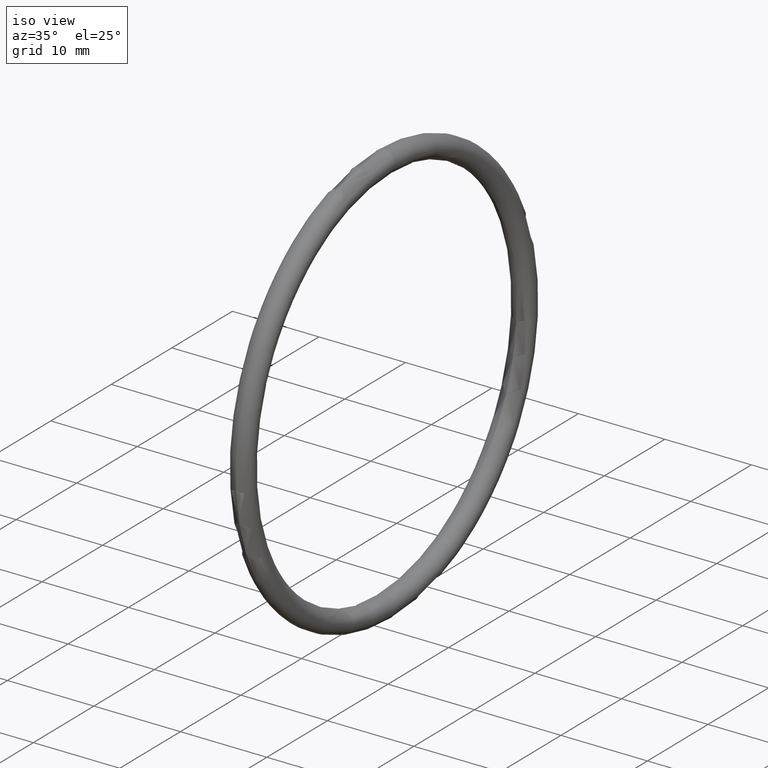
[diagram: clean part render]
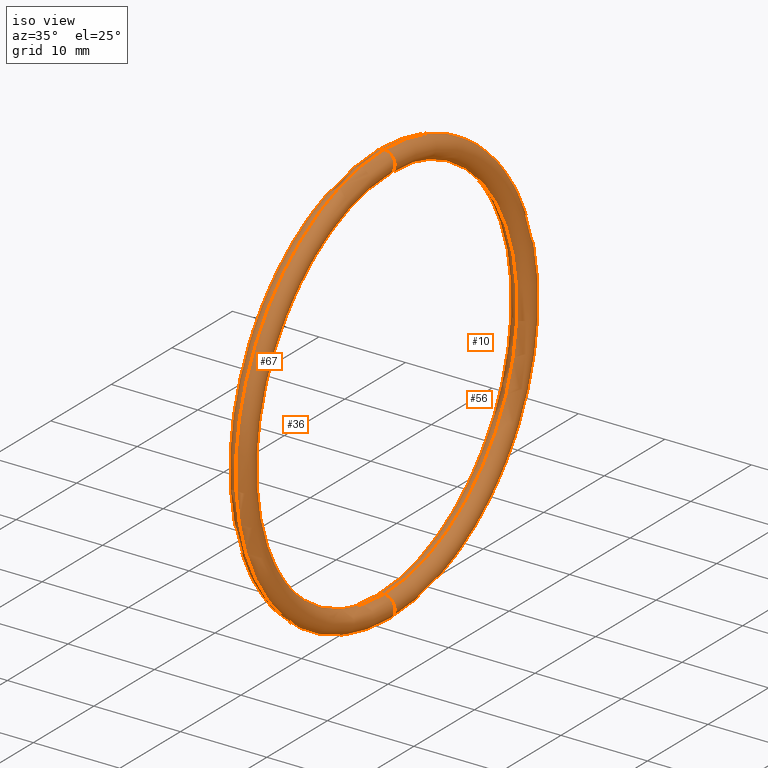
[diagram: same view with one multi-face feature highlighted, each face labeled with its STEP entity id]
A machine part, iso view. The highlighted faces form ONE feature: a constant-radius fillet chain: 4 tangent blend faces with common blend radius 1.27 mm. The faces share edges in the B-rep.
Their STEP definitions:
[1] entity #56 (Torus):
#2 = EDGE_CURVE ( 'NONE', #34, #6, #30, .T. ) ;
#5 = VERTEX_POINT ( 'NONE', #14 ) ;
#6 = VERTEX_POINT ( 'NONE', #13 ) ;
#8 = ORIENTED_EDGE ( 'NONE', *, *, #9, .F. ) ;
#9 = EDGE_CURVE ( 'NONE', #6, #54, #44, .T. ) ;
#11 = CARTESIAN_POINT ( 'NONE',  ( 0.1000000000000001300, 0.0000000000000000000, 0.0000000000000000000 ) ) ;
#13 = CARTESIAN_POINT ( 'NONE',  ( 0.1000000000000001300, 0.0000000000000000000, 0.8649999999999998800 ) ) ;
#14 = CARTESIAN_POINT ( 'NONE',  ( 0.1000000000000001300, 1.181784161177195800E-016, -0.9649999999999999700 ) ) ;
#15 = DIRECTION ( 'NONE',  ( 0.0000000000000000000, 0.0000000000000000000, -1.000000000000000000 ) ) ;
#16 = DIRECTION ( 'NONE',  ( 0.0000000000000000000, -1.000000000000000000, 0.0000000000000000000 ) ) ;
#17 = CARTESIAN_POINT ( 'NONE',  ( 0.1000000000000001300, 0.0000000000000000000, 0.9149999999999999200 ) ) ;
#22 = ORIENTED_EDGE ( 'NONE', *, *, #66, .T. ) ;
#24 = CARTESIAN_POINT ( 'NONE',  ( 0.1000000000000001300, 0.0000000000000000000, 0.9649999999999999700 ) ) ;
#29 = AXIS2_PLACEMENT_3D ( 'NONE', #17, #16, #15 ) ;
#30 = CIRCLE ( 'NONE', #29, 0.05000000000000001000 ) ;
#31 = ORIENTED_EDGE ( 'NONE', *, *, #2, .F. ) ;
#34 = VERTEX_POINT ( 'NONE', #24 ) ;
#41 = DIRECTION ( 'NONE',  ( 0.0000000000000000000, 0.0000000000000000000, 1.000000000000000000 ) ) ;
#42 = DIRECTION ( 'NONE',  ( -1.000000000000000000, 0.0000000000000000000, 0.0000000000000000000 ) ) ;
#43 = AXIS2_PLACEMENT_3D ( 'NONE', #11, #42, #41 ) ;
#44 = CIRCLE ( 'NONE', #43, 0.8649999999999998800 ) ;
#54 = VERTEX_POINT ( 'NONE', #166 ) ;
#56 = ADVANCED_FACE ( 'NONE', ( #125 ), #169, .T. ) ;
#57 = EDGE_LOOP ( 'NONE', ( #31, #64, #22, #8 ) ) ;
#64 = ORIENTED_EDGE ( 'NONE', *, *, #65, .T. ) ;
#65 = EDGE_CURVE ( 'NONE', #34, #5, #71, .T. ) ;
#66 = EDGE_CURVE ( 'NONE', #5, #54, #79, .T. ) ;
#68 = DIRECTION ( 'NONE',  ( -1.000000000000000000, 0.0000000000000000000, 0.0000000000000000000 ) ) ;
#69 = CARTESIAN_POINT ( 'NONE',  ( 0.1000000000000001300, 0.0000000000000000000, 0.0000000000000000000 ) ) ;
#70 = AXIS2_PLACEMENT_3D ( 'NONE', #69, #68, #126 ) ;
#71 = CIRCLE ( 'NONE', #70, 0.9649999999999999700 ) ;
#77 = CARTESIAN_POINT ( 'NONE',  ( 0.1000000000000001300, 1.120551821219828000E-016, -0.9149999999999999200 ) ) ;
#78 = AXIS2_PLACEMENT_3D ( 'NONE', #77, #83, #82 ) ;
#79 = CIRCLE ( 'NONE', #78, 0.05000000000000001000 ) ;
#82 = DIRECTION ( 'NONE',  ( 0.0000000000000000000, -1.224646799147354700E-016, 1.000000000000000000 ) ) ;
#83 = DIRECTION ( 'NONE',  ( 0.0000000000000000000, 1.000000000000000000, 1.224646799147353200E-016 ) ) ;
#91 = DIRECTION ( 'NONE',  ( 0.0000000000000000000, 0.0000000000000000000, 1.000000000000000000 ) ) ;
#92 = DIRECTION ( 'NONE',  ( -1.000000000000000000, 0.0000000000000000000, 0.0000000000000000000 ) ) ;
#93 = CARTESIAN_POINT ( 'NONE',  ( 0.1000000000000001300, 0.0000000000000000000, 0.0000000000000000000 ) ) ;
#94 = AXIS2_PLACEMENT_3D ( 'NONE', #93, #92, #91 ) ;
#125 = FACE_OUTER_BOUND ( 'NONE', #57, .T. ) ;
#126 = DIRECTION ( 'NONE',  ( 0.0000000000000000000, 0.0000000000000000000, 1.000000000000000000 ) ) ;
#166 = CARTESIAN_POINT ( 'NONE',  ( 0.1000000000000001300, 1.059319481262460300E-016, -0.8649999999999998800 ) ) ;
#169 = TOROIDAL_SURFACE ( 'NONE', #94, 0.9149999999999999200, 0.05000000000000002400 ) ;
[2] entity #10 (Torus):
#5 = VERTEX_POINT ( 'NONE', #14 ) ;
#6 = VERTEX_POINT ( 'NONE', #13 ) ;
#9 = EDGE_CURVE ( 'NONE', #6, #54, #44, .T. ) ;
#10 = ADVANCED_FACE ( 'NONE', ( #12 ), #39, .T. ) ;
#11 = CARTESIAN_POINT ( 'NONE',  ( 0.1000000000000001300, 0.0000000000000000000, 0.0000000000000000000 ) ) ;
#12 = FACE_OUTER_BOUND ( 'NONE', #18, .T. ) ;
#13 = CARTESIAN_POINT ( 'NONE',  ( 0.1000000000000001300, 0.0000000000000000000, 0.8649999999999998800 ) ) ;
#14 = CARTESIAN_POINT ( 'NONE',  ( 0.1000000000000001300, 1.181784161177195800E-016, -0.9649999999999999700 ) ) ;
#18 = EDGE_LOOP ( 'NONE', ( #19, #20, #62, #46 ) ) ;
#19 = ORIENTED_EDGE ( 'NONE', *, *, #65, .F. ) ;
#20 = ORIENTED_EDGE ( 'NONE', *, *, #21, .F. ) ;
#21 = EDGE_CURVE ( 'NONE', #6, #34, #52, .T. ) ;
#24 = CARTESIAN_POINT ( 'NONE',  ( 0.1000000000000001300, 0.0000000000000000000, 0.9649999999999999700 ) ) ;
#34 = VERTEX_POINT ( 'NONE', #24 ) ;
#35 = EDGE_CURVE ( 'NONE', #54, #5, #196, .T. ) ;
#37 = CARTESIAN_POINT ( 'NONE',  ( 0.1000000000000001300, 0.0000000000000000000, 0.0000000000000000000 ) ) ;
#38 = AXIS2_PLACEMENT_3D ( 'NONE', #37, #40, #53 ) ;
#39 = TOROIDAL_SURFACE ( 'NONE', #38, 0.9149999999999999200, 0.05000000000000002400 ) ;
#40 = DIRECTION ( 'NONE',  ( -1.000000000000000000, 0.0000000000000000000, 0.0000000000000000000 ) ) ;
#41 = DIRECTION ( 'NONE',  ( 0.0000000000000000000, 0.0000000000000000000, 1.000000000000000000 ) ) ;
#42 = DIRECTION ( 'NONE',  ( -1.000000000000000000, 0.0000000000000000000, 0.0000000000000000000 ) ) ;
#43 = AXIS2_PLACEMENT_3D ( 'NONE', #11, #42, #41 ) ;
#44 = CIRCLE ( 'NONE', #43, 0.8649999999999998800 ) ;
#46 = ORIENTED_EDGE ( 'NONE', *, *, #35, .T. ) ;
#48 = DIRECTION ( 'NONE',  ( 0.0000000000000000000, 0.0000000000000000000, -1.000000000000000000 ) ) ;
#49 = DIRECTION ( 'NONE',  ( 0.0000000000000000000, -1.000000000000000000, 0.0000000000000000000 ) ) ;
#50 = CARTESIAN_POINT ( 'NONE',  ( 0.1000000000000001300, 0.0000000000000000000, 0.9149999999999999200 ) ) ;
#51 = AXIS2_PLACEMENT_3D ( 'NONE', #50, #49, #48 ) ;
#52 = CIRCLE ( 'NONE', #51, 0.05000000000000001000 ) ;
#53 = DIRECTION ( 'NONE',  ( 0.0000000000000000000, 0.0000000000000000000, 1.000000000000000000 ) ) ;
#54 = VERTEX_POINT ( 'NONE', #166 ) ;
#62 = ORIENTED_EDGE ( 'NONE', *, *, #9, .T. ) ;
#65 = EDGE_CURVE ( 'NONE', #34, #5, #71, .T. ) ;
#68 = DIRECTION ( 'NONE',  ( -1.000000000000000000, 0.0000000000000000000, 0.0000000000000000000 ) ) ;
#69 = CARTESIAN_POINT ( 'NONE',  ( 0.1000000000000001300, 0.0000000000000000000, 0.0000000000000000000 ) ) ;
#70 = AXIS2_PLACEMENT_3D ( 'NONE', #69, #68, #126 ) ;
#71 = CIRCLE ( 'NONE', #70, 0.9649999999999999700 ) ;
#89 = CARTESIAN_POINT ( 'NONE',  ( 0.1000000000000001300, 1.120551821219828000E-016, -0.9149999999999999200 ) ) ;
#126 = DIRECTION ( 'NONE',  ( 0.0000000000000000000, 0.0000000000000000000, 1.000000000000000000 ) ) ;
#127 = AXIS2_PLACEMENT_3D ( 'NONE', #89, #147, #146 ) ;
#146 = DIRECTION ( 'NONE',  ( 0.0000000000000000000, -1.224646799147354700E-016, 1.000000000000000000 ) ) ;
#147 = DIRECTION ( 'NONE',  ( 0.0000000000000000000, 1.000000000000000000, 1.224646799147353200E-016 ) ) ;
#166 = CARTESIAN_POINT ( 'NONE',  ( 0.1000000000000001300, 1.059319481262460300E-016, -0.8649999999999998800 ) ) ;
#196 = CIRCLE ( 'NONE', #127, 0.05000000000000001000 ) ;
[3] entity #36 (Torus):
#3 = ORIENTED_EDGE ( 'NONE', *, *, #21, .T. ) ;
#5 = VERTEX_POINT ( 'NONE', #14 ) ;
#6 = VERTEX_POINT ( 'NONE', #13 ) ;
#13 = CARTESIAN_POINT ( 'NONE',  ( 0.1000000000000001300, 0.0000000000000000000, 0.8649999999999998800 ) ) ;
#14 = CARTESIAN_POINT ( 'NONE',  ( 0.1000000000000001300, 1.181784161177195800E-016, -0.9649999999999999700 ) ) ;
#21 = EDGE_CURVE ( 'NONE', #6, #34, #52, .T. ) ;
#24 = CARTESIAN_POINT ( 'NONE',  ( 0.1000000000000001300, 0.0000000000000000000, 0.9649999999999999700 ) ) ;
#25 = DIRECTION ( 'NONE',  ( 0.0000000000000000000, 0.0000000000000000000, 1.000000000000000000 ) ) ;
#26 = DIRECTION ( 'NONE',  ( -1.000000000000000000, 0.0000000000000000000, 0.0000000000000000000 ) ) ;
#27 = CARTESIAN_POINT ( 'NONE',  ( 0.1000000000000001300, 0.0000000000000000000, 0.0000000000000000000 ) ) ;
#28 = AXIS2_PLACEMENT_3D ( 'NONE', #27, #26, #25 ) ;
#33 = EDGE_CURVE ( 'NONE', #5, #34, #47, .T. ) ;
#34 = VERTEX_POINT ( 'NONE', #24 ) ;
#35 = EDGE_CURVE ( 'NONE', #54, #5, #196, .T. ) ;
#36 = ADVANCED_FACE ( 'NONE', ( #191 ), #193, .T. ) ;
#45 = EDGE_LOOP ( 'NONE', ( #59, #61, #60, #3 ) ) ;
#47 = CIRCLE ( 'NONE', #28, 0.9649999999999999700 ) ;
#48 = DIRECTION ( 'NONE',  ( 0.0000000000000000000, 0.0000000000000000000, -1.000000000000000000 ) ) ;
#49 = DIRECTION ( 'NONE',  ( 0.0000000000000000000, -1.000000000000000000, 0.0000000000000000000 ) ) ;
#50 = CARTESIAN_POINT ( 'NONE',  ( 0.1000000000000001300, 0.0000000000000000000, 0.9149999999999999200 ) ) ;
#51 = AXIS2_PLACEMENT_3D ( 'NONE', #50, #49, #48 ) ;
#52 = CIRCLE ( 'NONE', #51, 0.05000000000000001000 ) ;
#54 = VERTEX_POINT ( 'NONE', #166 ) ;
#55 = EDGE_CURVE ( 'NONE', #54, #6, #124, .T. ) ;
#59 = ORIENTED_EDGE ( 'NONE', *, *, #33, .F. ) ;
#60 = ORIENTED_EDGE ( 'NONE', *, *, #55, .T. ) ;
#61 = ORIENTED_EDGE ( 'NONE', *, *, #35, .F. ) ;
#89 = CARTESIAN_POINT ( 'NONE',  ( 0.1000000000000001300, 1.120551821219828000E-016, -0.9149999999999999200 ) ) ;
#90 = CARTESIAN_POINT ( 'NONE',  ( 0.1000000000000001300, 0.0000000000000000000, 0.0000000000000000000 ) ) ;
#96 = DIRECTION ( 'NONE',  ( 0.0000000000000000000, 0.0000000000000000000, 1.000000000000000000 ) ) ;
#97 = AXIS2_PLACEMENT_3D ( 'NONE', #123, #145, #96 ) ;
#123 = CARTESIAN_POINT ( 'NONE',  ( 0.1000000000000001300, 0.0000000000000000000, 0.0000000000000000000 ) ) ;
#124 = CIRCLE ( 'NONE', #97, 0.8649999999999998800 ) ;
#127 = AXIS2_PLACEMENT_3D ( 'NONE', #89, #147, #146 ) ;
#145 = DIRECTION ( 'NONE',  ( -1.000000000000000000, 0.0000000000000000000, 0.0000000000000000000 ) ) ;
#146 = DIRECTION ( 'NONE',  ( 0.0000000000000000000, -1.224646799147354700E-016, 1.000000000000000000 ) ) ;
#147 = DIRECTION ( 'NONE',  ( 0.0000000000000000000, 1.000000000000000000, 1.224646799147353200E-016 ) ) ;
#166 = CARTESIAN_POINT ( 'NONE',  ( 0.1000000000000001300, 1.059319481262460300E-016, -0.8649999999999998800 ) ) ;
#167 = DIRECTION ( 'NONE',  ( 0.0000000000000000000, 0.0000000000000000000, 1.000000000000000000 ) ) ;
#168 = DIRECTION ( 'NONE',  ( -1.000000000000000000, 0.0000000000000000000, 0.0000000000000000000 ) ) ;
#191 = FACE_OUTER_BOUND ( 'NONE', #45, .T. ) ;
#192 = AXIS2_PLACEMENT_3D ( 'NONE', #90, #168, #167 ) ;
#193 = TOROIDAL_SURFACE ( 'NONE', #192, 0.9149999999999999200, 0.05000000000000002400 ) ;
#196 = CIRCLE ( 'NONE', #127, 0.05000000000000001000 ) ;
[4] entity #67 (Torus):
#2 = EDGE_CURVE ( 'NONE', #34, #6, #30, .T. ) ;
#4 = ORIENTED_EDGE ( 'NONE', *, *, #66, .F. ) ;
#5 = VERTEX_POINT ( 'NONE', #14 ) ;
#6 = VERTEX_POINT ( 'NONE', #13 ) ;
#7 = ORIENTED_EDGE ( 'NONE', *, *, #55, .F. ) ;
#13 = CARTESIAN_POINT ( 'NONE',  ( 0.1000000000000001300, 0.0000000000000000000, 0.8649999999999998800 ) ) ;
#14 = CARTESIAN_POINT ( 'NONE',  ( 0.1000000000000001300, 1.181784161177195800E-016, -0.9649999999999999700 ) ) ;
#15 = DIRECTION ( 'NONE',  ( 0.0000000000000000000, 0.0000000000000000000, -1.000000000000000000 ) ) ;
#16 = DIRECTION ( 'NONE',  ( 0.0000000000000000000, -1.000000000000000000, 0.0000000000000000000 ) ) ;
#17 = CARTESIAN_POINT ( 'NONE',  ( 0.1000000000000001300, 0.0000000000000000000, 0.9149999999999999200 ) ) ;
#23 = ORIENTED_EDGE ( 'NONE', *, *, #2, .T. ) ;
#24 = CARTESIAN_POINT ( 'NONE',  ( 0.1000000000000001300, 0.0000000000000000000, 0.9649999999999999700 ) ) ;
#25 = DIRECTION ( 'NONE',  ( 0.0000000000000000000, 0.0000000000000000000, 1.000000000000000000 ) ) ;
#26 = DIRECTION ( 'NONE',  ( -1.000000000000000000, 0.0000000000000000000, 0.0000000000000000000 ) ) ;
#27 = CARTESIAN_POINT ( 'NONE',  ( 0.1000000000000001300, 0.0000000000000000000, 0.0000000000000000000 ) ) ;
#28 = AXIS2_PLACEMENT_3D ( 'NONE', #27, #26, #25 ) ;
#29 = AXIS2_PLACEMENT_3D ( 'NONE', #17, #16, #15 ) ;
#30 = CIRCLE ( 'NONE', #29, 0.05000000000000001000 ) ;
#32 = ORIENTED_EDGE ( 'NONE', *, *, #33, .T. ) ;
#33 = EDGE_CURVE ( 'NONE', #5, #34, #47, .T. ) ;
#34 = VERTEX_POINT ( 'NONE', #24 ) ;
#47 = CIRCLE ( 'NONE', #28, 0.9649999999999999700 ) ;
#54 = VERTEX_POINT ( 'NONE', #166 ) ;
#55 = EDGE_CURVE ( 'NONE', #54, #6, #124, .T. ) ;
#63 = EDGE_LOOP ( 'NONE', ( #4, #32, #23, #7 ) ) ;
#66 = EDGE_CURVE ( 'NONE', #5, #54, #79, .T. ) ;
#67 = ADVANCED_FACE ( 'NONE', ( #80 ), #81, .T. ) ;
#77 = CARTESIAN_POINT ( 'NONE',  ( 0.1000000000000001300, 1.120551821219828000E-016, -0.9149999999999999200 ) ) ;
#78 = AXIS2_PLACEMENT_3D ( 'NONE', #77, #83, #82 ) ;
#79 = CIRCLE ( 'NONE', #78, 0.05000000000000001000 ) ;
#80 = FACE_OUTER_BOUND ( 'NONE', #63, .T. ) ;
#81 = TOROIDAL_SURFACE ( 'NONE', #122, 0.9149999999999999200, 0.05000000000000002400 ) ;
#82 = DIRECTION ( 'NONE',  ( 0.0000000000000000000, -1.224646799147354700E-016, 1.000000000000000000 ) ) ;
#83 = DIRECTION ( 'NONE',  ( 0.0000000000000000000, 1.000000000000000000, 1.224646799147353200E-016 ) ) ;
#96 = DIRECTION ( 'NONE',  ( 0.0000000000000000000, 0.0000000000000000000, 1.000000000000000000 ) ) ;
#97 = AXIS2_PLACEMENT_3D ( 'NONE', #123, #145, #96 ) ;
#119 = DIRECTION ( 'NONE',  ( 0.0000000000000000000, 0.0000000000000000000, 1.000000000000000000 ) ) ;
#120 = DIRECTION ( 'NONE',  ( -1.000000000000000000, 0.0000000000000000000, 0.0000000000000000000 ) ) ;
#121 = CARTESIAN_POINT ( 'NONE',  ( 0.1000000000000001300, 0.0000000000000000000, 0.0000000000000000000 ) ) ;
#122 = AXIS2_PLACEMENT_3D ( 'NONE', #121, #120, #119 ) ;
#123 = CARTESIAN_POINT ( 'NONE',  ( 0.1000000000000001300, 0.0000000000000000000, 0.0000000000000000000 ) ) ;
#124 = CIRCLE ( 'NONE', #97, 0.8649999999999998800 ) ;
#145 = DIRECTION ( 'NONE',  ( -1.000000000000000000, 0.0000000000000000000, 0.0000000000000000000 ) ) ;
#166 = CARTESIAN_POINT ( 'NONE',  ( 0.1000000000000001300, 1.059319481262460300E-016, -0.8649999999999998800 ) ) ;